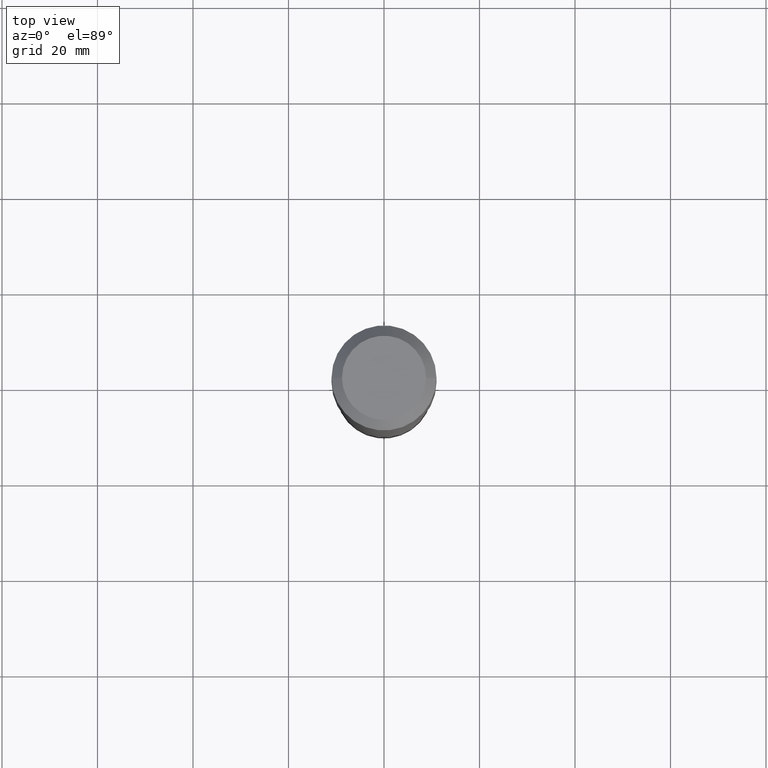
[diagram: clean part render]
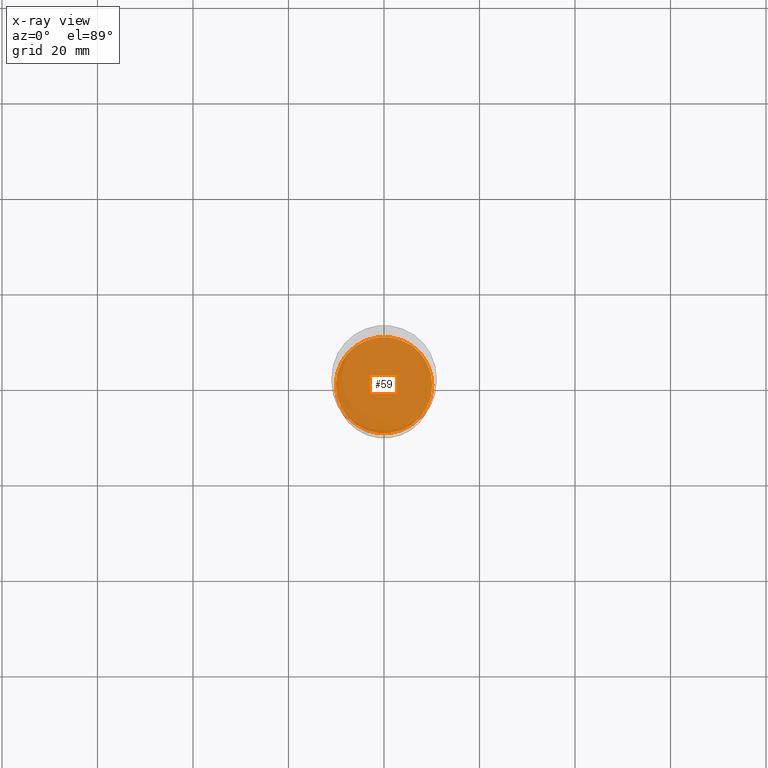
[diagram: x-ray — body ghosted, one internal face saturated and labeled with its STEP entity id]
A machine part, top view, then the same camera in x-ray: the body is ghosted and one INTERNAL B-rep face — a face not visible from any outside direction — is saturated and labeled: STEP entity #59.
In plain terms, the highlighted planar face has unit normal (-0, 0, 1).
Its self-contained STEP definition (entity closure, byte-faithful):
#9 = FACE_OUTER_BOUND ( 'NONE', #105, .T. ) ;
#31 = AXIS2_PLACEMENT_3D ( 'NONE', #255, #335, #151 ) ;
#59 = ADVANCED_FACE ( 'NONE', ( #9 ), #383, .F. ) ;
#70 = DIRECTION ( 'NONE',  ( 1.000000000000000000, -6.982962677686264344E-15, 0.000000000000000000 ) ) ;
#87 = EDGE_CURVE ( 'NONE', #456, #374, #148, .T. ) ;
#105 = EDGE_LOOP ( 'NONE', ( #249, #152 ) ) ;
#111 = DIRECTION ( 'NONE',  ( -2.445468806185136597E-29, 3.491481338843145583E-15, 1.000000000000000000 ) ) ;
#148 = CIRCLE ( 'NONE', #31, 0.3979500000000000814 ) ;
#151 = DIRECTION ( 'NONE',  ( 1.000000000000000000, -6.982962677686264344E-15, 0.000000000000000000 ) ) ;
#152 = ORIENTED_EDGE ( 'NONE', *, *, #87, .F. ) ;
#157 = CARTESIAN_POINT ( 'NONE',  ( -0.3979500000000000814, -9.632588594869177729E-15, -3.569499999999999673 ) ) ;
#182 = DIRECTION ( 'NONE',  ( -2.438088387897960049E-29, 3.491481338843145188E-15, 1.000000000000000000 ) ) ;
#185 = CARTESIAN_POINT ( 'NONE',  ( 8.729100903677844984E-29, -1.246284263900060702E-14, -3.569499999999999673 ) ) ;
#249 = ORIENTED_EDGE ( 'NONE', *, *, #359, .F. ) ;
#255 = CARTESIAN_POINT ( 'NONE',  ( 8.729100903677844984E-29, -1.246284263900060702E-14, -3.569499999999999673 ) ) ;
#329 = AXIS2_PLACEMENT_3D ( 'NONE', #469, #111, #70 ) ;
#335 = DIRECTION ( 'NONE',  ( -2.445468806185136597E-29, 3.491481338843145583E-15, 1.000000000000000000 ) ) ;
#359 = EDGE_CURVE ( 'NONE', #374, #456, #485, .T. ) ;
#374 = VERTEX_POINT ( 'NONE', #460 ) ;
#383 = PLANE ( 'NONE',  #493 ) ;
#456 = VERTEX_POINT ( 'NONE', #157 ) ;
#460 = CARTESIAN_POINT ( 'NONE',  ( 0.3979500000000000814, -1.524171263658585816E-14, -3.569499999999999673 ) ) ;
#469 = CARTESIAN_POINT ( 'NONE',  ( 8.729100903677844984E-29, -1.246284263900060702E-14, -3.569499999999999673 ) ) ;
#485 = CIRCLE ( 'NONE', #329, 0.3979500000000000814 ) ;
#493 = AXIS2_PLACEMENT_3D ( 'NONE', #185, #182, #501 ) ;
#501 = DIRECTION ( 'NONE',  ( 1.000000000000000000, -6.982962677686265922E-15, 4.876176775795935793E-29 ) ) ;